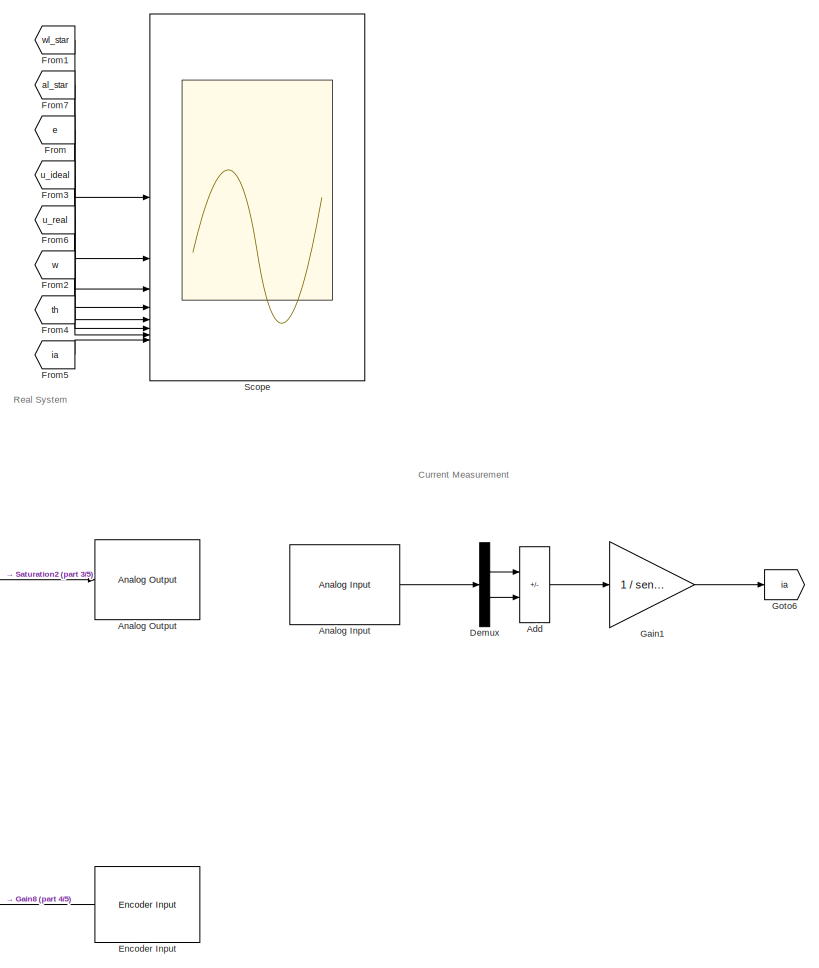
[diagram: root canvas - part 1/5, top right region]
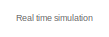
[diagram: root canvas - part 2/5, top left region]
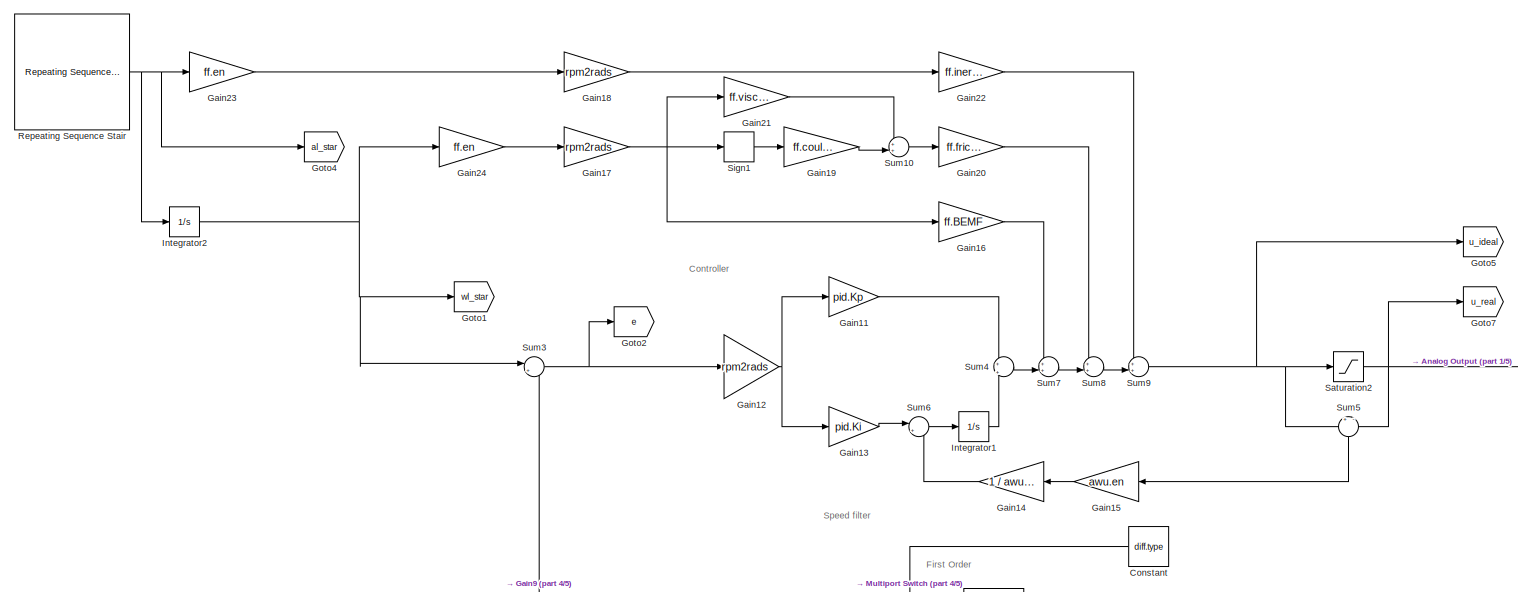
[diagram: root canvas - part 3/5, top center region]
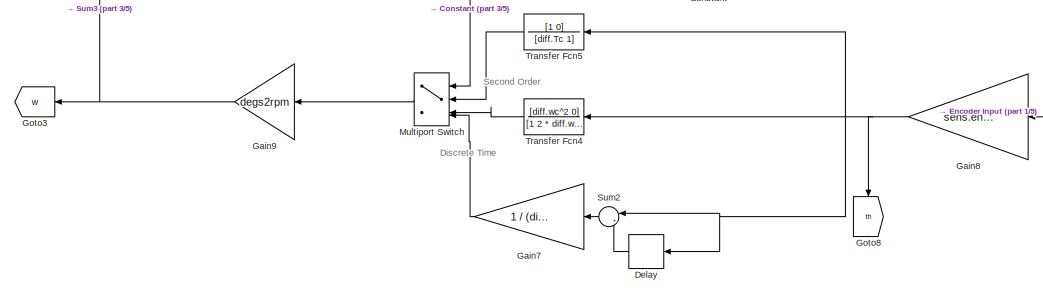
[diagram: root canvas - part 4/5, central region]
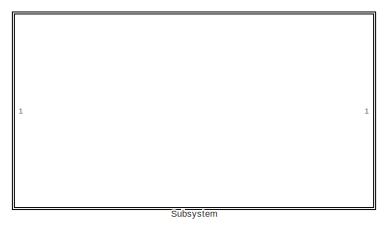
[diagram: root canvas - part 5/5, bottom right region]
MODEL slx_08e424369239
KIND model
CONFIG AbsTol = auto
CONFIG EnableMultiTasking = off
CONFIG FixedStep = 0.001
CONFIG MaxStep = 0.0001
CONFIG MinStep = auto
CONFIG RelTol = 1e-3
CONFIG SampleTimeConstraint = Unconstrained
CONFIG SolverName = ode3
CONFIG StartTime = 0.0
CONFIG StopTime = 60
BLOCK [Sum] Add
  IconShape = rectangular
  Inputs = +-
BLOCK [Reference] Analog Input  REF=sldrtlib/Analog Input
  AttributesFormatString = National Instruments\nPCIe-6321 [auto]
  SourceBlock = sldrtlib/Analog Input
  SourceType = Simulink Desktop Real-Time Analog Input
BLOCK [Reference] Analog Output  REF=sldrtlib/Analog Output
  AttributesFormatString = National Instruments\nPCIe-6321 [auto]
  SourceBlock = sldrtlib/Analog Output
  SourceType = Simulink Desktop Real-Time Analog Output
BLOCK [Constant] Constant
  Value = diff.type
BLOCK [Delay] Delay
  DelayLength = diff.N
  InputPortMap = u0
BLOCK [Demux] Demux
  Outputs = 2
BLOCK [Reference] Encoder Input  REF=sldrtlib/Encoder Input
  AttributesFormatString = National Instruments\nPCIe-6321 [auto]
  SourceBlock = sldrtlib/Encoder Input
  SourceType = Simulink Desktop Real-Time Encoder Input
BLOCK [From] From
  GotoTag = e
BLOCK [From] From1
  GotoTag = wl_star
BLOCK [From] From2
  GotoTag = w
BLOCK [From] From3
  GotoTag = u_ideal
BLOCK [From] From4
  GotoTag = th
BLOCK [From] From5
  GotoTag = ia
BLOCK [From] From6
  GotoTag = u_real
BLOCK [From] From7
  GotoTag = al_star
BLOCK [Gain] Gain1
  Gain = 1 / sens.curr.Rs
BLOCK [Gain] Gain11
  Gain = pid.Kp
BLOCK [Gain] Gain12
  Gain = rpm2rads
BLOCK [Gain] Gain13
  Gain = pid.Ki
BLOCK [Gain] Gain14
  Gain = 1 / awu.Tw
BLOCK [Gain] Gain15
  Gain = awu.en
BLOCK [Gain] Gain16
  Gain = ff.BEMF
BLOCK [Gain] Gain17
  Gain = rpm2rads
BLOCK [Gain] Gain18
  Gain = rpm2rads
BLOCK [Gain] Gain19
  Gain = ff.coulomb
BLOCK [Gain] Gain20
  Gain = ff.friction
BLOCK [Gain] Gain21
  Gain = ff.viscous
BLOCK [Gain] Gain22
  Gain = ff.inertia
BLOCK [Gain] Gain23
  Gain = ff.en
BLOCK [Gain] Gain24
  Gain = ff.en
BLOCK [Gain] Gain7
  Gain = 1 / (diff.Ts * diff.N)
BLOCK [Gain] Gain8
  Gain = sens.enc.pulse2deg
BLOCK [Gain] Gain9
  Gain = degs2rpm
BLOCK [Goto] Goto1
  GotoTag = wl_star
BLOCK [Goto] Goto2
  GotoTag = e
BLOCK [Goto] Goto3
  GotoTag = w
BLOCK [Goto] Goto4
  GotoTag = al_star
BLOCK [Goto] Goto5
  GotoTag = u_ideal
BLOCK [Goto] Goto6
  GotoTag = ia
BLOCK [Goto] Goto7
  GotoTag = u_real
BLOCK [Goto] Goto8
  GotoTag = th
  NameLocation = right
BLOCK [Integrator] Integrator1
BLOCK [Integrator] Integrator2
BLOCK [MultiPortSwitch] Multiport Switch
  InputSameDT = off
  SaturateOnIntegerOverflow = off
BLOCK [Reference] Repeating Sequence Stair  REF=simulink/Sources/Repeating
Sequence
Stair
  SourceBlock = simulink/Sources/Repeating\nSequence\nStair
  SourceType = Repeating Sequence Stair
BLOCK [Saturate] Saturation2
  LowerLimit = -dac.V
  UpperLimit = dac.V
BLOCK [Scope] Scope
  Floating = off
  NumInputPorts = 8
  ScopeSpecificationString = Simulink.scopes.TimeScopeBlockCfg('CurrentConfiguration', extmgr.ConfigurationSet(extmgr.Configuration('Core','General UI',true),extmgr.Configuration('Core','Source UI',true),extmgr.Configuration('Sources','WiredSimulink',true,'DataLogging',true,'DataLoggingSaveFormat','StructureWithTime','DataLoggingVariableName','awu_ff_resp'),extmgr.Configuration('Visuals','Time Domain',true,'SerializedDisplays...<+7043ch>
BLOCK [Signum] Sign1
  ZeroCross = off
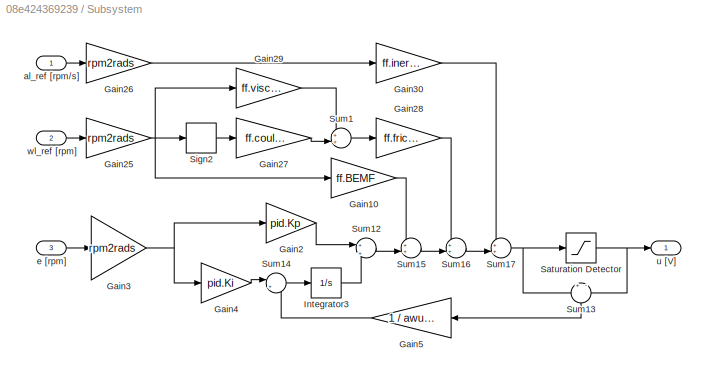
BLOCK [SubSystem] Subsystem
BLOCK [Gain] Subsystem/Gain10
  Gain = ff.BEMF
BLOCK [Gain] Subsystem/Gain2
  Gain = pid.Kp
BLOCK [Gain] Subsystem/Gain25
  Gain = rpm2rads
BLOCK [Gain] Subsystem/Gain26
  Gain = rpm2rads
BLOCK [Gain] Subsystem/Gain27
  Gain = ff.coulomb
BLOCK [Gain] Subsystem/Gain28
  Gain = ff.friction
BLOCK [Gain] Subsystem/Gain29
  Gain = ff.viscous
BLOCK [Gain] Subsystem/Gain3
  Gain = rpm2rads
BLOCK [Gain] Subsystem/Gain30
  Gain = ff.inertia
BLOCK [Gain] Subsystem/Gain4
  Gain = pid.Ki
BLOCK [Gain] Subsystem/Gain5
  Gain = 1 / awu.Tw
BLOCK [Integrator] Subsystem/Integrator3
BLOCK [Saturate] Subsystem/Saturation Detector
  LowerLimit = -dac.V
  UpperLimit = dac.V
BLOCK [Signum] Subsystem/Sign2
  ZeroCross = off
BLOCK [Sum] Subsystem/Sum1
  Inputs = ++|
BLOCK [Sum] Subsystem/Sum12
  Inputs = +|+
BLOCK [Sum] Subsystem/Sum13
  Inputs = +|-
  NameLocation = left
BLOCK [Sum] Subsystem/Sum14
  Inputs = |+-
BLOCK [Sum] Subsystem/Sum15
  Inputs = ++|
BLOCK [Sum] Subsystem/Sum16
  Inputs = ++|
BLOCK [Sum] Subsystem/Sum17
  Inputs = ++|
BLOCK [Inport] Subsystem/al_ref [rpm//s]
BLOCK [Inport] Subsystem/e [rpm]
  Port = 3
BLOCK [Outport] Subsystem/u [V]
BLOCK [Inport] Subsystem/wl_ref [rpm]
  Port = 2
BLOCK [Sum] Sum10
  Inputs = ++|
BLOCK [Sum] Sum2
  Inputs = |+-
BLOCK [Sum] Sum3
  Inputs = |+-
BLOCK [Sum] Sum4
  Inputs = +|+
BLOCK [Sum] Sum5
  Inputs = +|-
  NameLocation = left
BLOCK [Sum] Sum6
  Inputs = |+-
BLOCK [Sum] Sum7
  Inputs = ++|
BLOCK [Sum] Sum8
  Inputs = ++|
BLOCK [Sum] Sum9
  Inputs = ++|
BLOCK [TransferFcn] Transfer Fcn4
  Denominator = [1 2 * diff.wc * diff.d diff.wc^2]
  Numerator = [diff.wc^2 0]
BLOCK [TransferFcn] Transfer Fcn5
  Denominator = [diff.Tc 1]
  Numerator = [1 0]
ANNOTATION (root): Controller
ANNOTATION (root): Current Measurement
ANNOTATION (root): Discrete Time
ANNOTATION (root): First Order
ANNOTATION (root): Real System
ANNOTATION (root): Real time simulation
ANNOTATION (root): Second Order
ANNOTATION (root): Speed filter
LINE Add:1 -> Gain1:1
LINE Analog Input:1 -> Demux:1
LINE Constant:1 -> Multiport Switch:1
LINE Delay:1 -> Sum2:2
LINE Demux:1 -> Add:1
LINE Demux:2 -> Add:2
LINE Encoder Input:1 -> Gain8:1
LINE From1:1 -> Scope:1
LINE From2:1 -> Scope:6
LINE From3:1 -> Scope:4
LINE From4:1 -> Scope:7
LINE From5:1 -> Scope:8
LINE From6:1 -> Scope:5
LINE From7:1 -> Scope:2
LINE From:1 -> Scope:3
LINE Gain11:1 -> Sum4:1
NET Gain12:1 -> Gain11:1, Gain13:1
LINE Gain13:1 -> Sum6:1
LINE Gain14:1 -> Sum6:2
LINE Gain15:1 -> Gain14:1
LINE Gain16:1 -> Sum7:1
NET Gain17:1 -> Gain16:1, Gain21:1, Sign1:1
LINE Gain18:1 -> Gain22:1
LINE Gain19:1 -> Sum10:2
LINE Gain1:1 -> Goto6:1
LINE Gain20:1 -> Sum8:1
LINE Gain21:1 -> Sum10:1
LINE Gain22:1 -> Sum9:1
LINE Gain23:1 -> Gain18:1
LINE Gain24:1 -> Gain17:1
LINE Gain7:1 -> Multiport Switch:4
NET Gain8:1 -> Delay:1, Goto8:1, Sum2:1, Transfer Fcn4:1, Transfer Fcn5:1
NET Gain9:1 -> Goto3:1, Sum3:2
LINE Integrator1:1 -> Sum4:2
NET Integrator2:1 -> Gain24:1, Goto1:1, Sum3:1
LINE Multiport Switch:1 -> Gain9:1
NET Repeating Sequence Stair:1 -> Gain23:1, Goto4:1, Integrator2:1
NET Saturation2:1 -> Analog Output:1, Goto7:1, Sum5:2
LINE Sign1:1 -> Gain19:1
LINE Subsystem/Gain10:1 -> Subsystem/Sum15:1
NET Subsystem/Gain25:1 -> Subsystem/Gain10:1, Subsystem/Gain29:1, Subsystem/Sign2:1
LINE Subsystem/Gain26:1 -> Subsystem/Gain30:1
LINE Subsystem/Gain27:1 -> Subsystem/Sum1:2
LINE Subsystem/Gain28:1 -> Subsystem/Sum16:1
LINE Subsystem/Gain29:1 -> Subsystem/Sum1:1
LINE Subsystem/Gain2:1 -> Subsystem/Sum12:1
LINE Subsystem/Gain30:1 -> Subsystem/Sum17:1
NET Subsystem/Gain3:1 -> Subsystem/Gain2:1, Subsystem/Gain4:1
LINE Subsystem/Gain4:1 -> Subsystem/Sum14:1
LINE Subsystem/Gain5:1 -> Subsystem/Sum14:2
LINE Subsystem/Integrator3:1 -> Subsystem/Sum12:2
NET Subsystem/Saturation Detector:1 -> Subsystem/Sum13:2, Subsystem/u [V]:1
LINE Subsystem/Sign2:1 -> Subsystem/Gain27:1
LINE Subsystem/Sum12:1 -> Subsystem/Sum15:2
LINE Subsystem/Sum13:1 -> Subsystem/Gain5:1
LINE Subsystem/Sum14:1 -> Subsystem/Integrator3:1
LINE Subsystem/Sum15:1 -> Subsystem/Sum16:2
LINE Subsystem/Sum16:1 -> Subsystem/Sum17:2
NET Subsystem/Sum17:1 -> Subsystem/Saturation Detector:1, Subsystem/Sum13:1
LINE Subsystem/Sum1:1 -> Subsystem/Gain28:1
LINE Subsystem/al_ref [rpm//s]:1 -> Subsystem/Gain26:1
LINE Subsystem/e [rpm]:1 -> Subsystem/Gain3:1
LINE Subsystem/wl_ref [rpm]:1 -> Subsystem/Gain25:1
LINE Sum10:1 -> Gain20:1
LINE Sum2:1 -> Gain7:1
NET Sum3:1 -> Gain12:1, Goto2:1
LINE Sum4:1 -> Sum7:2
LINE Sum5:1 -> Gain15:1
LINE Sum6:1 -> Integrator1:1
LINE Sum7:1 -> Sum8:2
LINE Sum8:1 -> Sum9:2
NET Sum9:1 -> Goto5:1, Saturation2:1, Sum5:1
LINE Transfer Fcn4:1 -> Multiport Switch:3
LINE Transfer Fcn5:1 -> Multiport Switch:2
note: NET lines group one-source signal fan-out (src -> all destinations, sorted); 1:1 wires keep LINE
